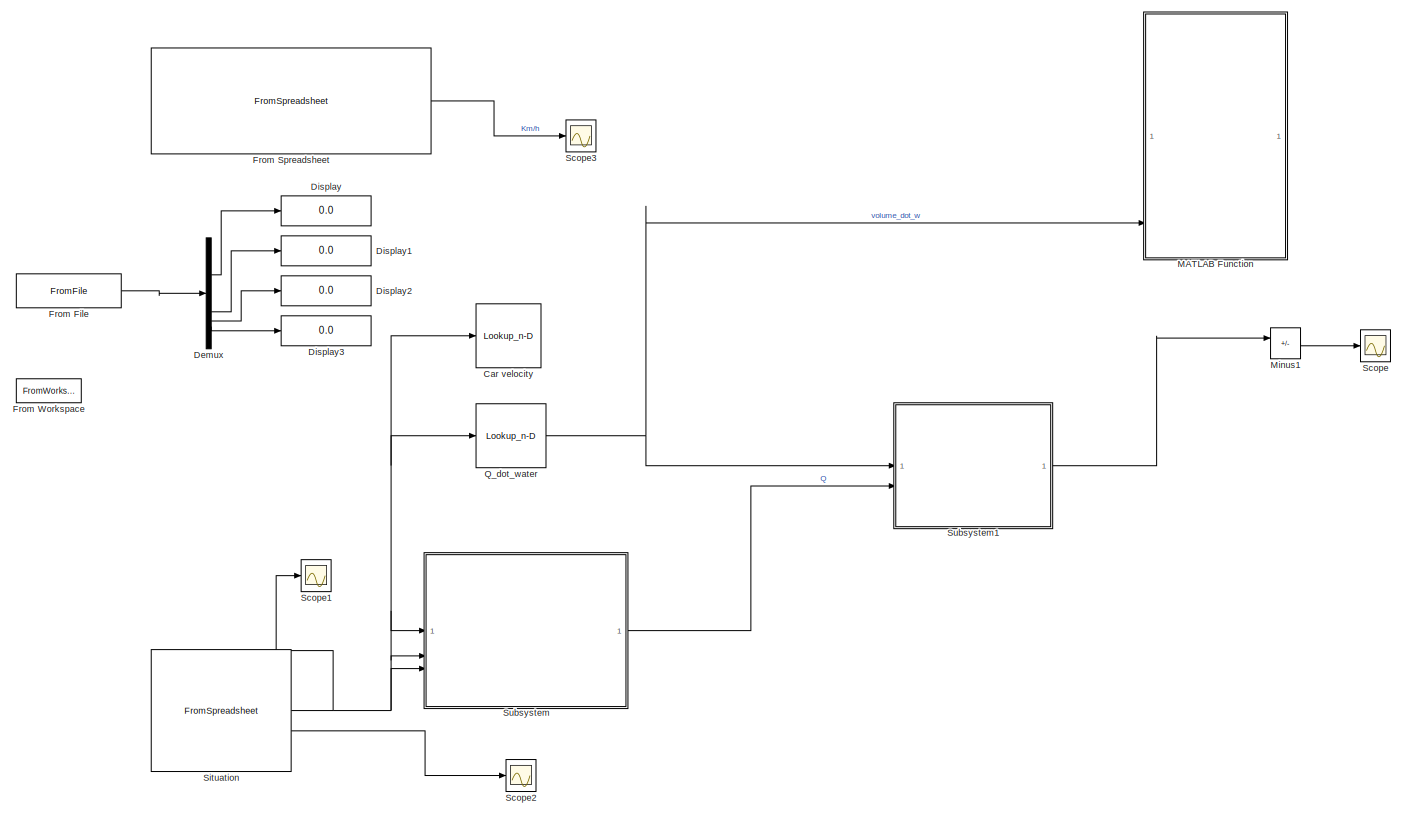
[diagram: root canvas - part 1/1, most of the canvas]
MODEL slx_274540c7875d
KIND model
CONFIG AbsTol = auto
CONFIG EnableMultiTasking = off
CONFIG FixedStep = auto
CONFIG MaxStep = auto
CONFIG MinStep = auto
CONFIG RelTol = 1e-3
CONFIG SampleTimeConstraint = Unconstrained
CONFIG SolverName = VariableStepAuto
CONFIG StartTime = 0.0
CONFIG StopTime = 1697
BLOCK [Lookup_n-D] Car velocity
  BreakpointsForDimension1 = [2500\n3000\n3500\n4000\n4500\n5000\n5500\n6000\n6500\n7000\n7500\n8000\n8500\n9000\n9500\n10000\n10500\n11000\n11500\n12000\n]
  Commented = on
  InputPortMap = u0
  InternalRulePriority = Speed
  NumberOfTableDimensions = 1
  RndMeth = Simplest
  Table = [14.74651903\n17.69582284\n20.64512664\n23.59443045\n26.54373425\n29.49303806\n32.44234187\n35.39164567\n38.34094948\n41.29025329\n44.23955709\n47.1888609\n50.1381647\n53.08746851\n56.03677232\n58.98607612\n61.93537993\n64.88468373\n67.83398754\n70.78329135\n]
BLOCK [Demux] Demux
BLOCK [Display] Display
  Decimation = 1
BLOCK [Display] Display1
  Decimation = 1
BLOCK [Display] Display2
  Decimation = 1
BLOCK [Display] Display3
  Decimation = 1
BLOCK [FromFile] From File
  FileName = Radi_parameter.mat
  SampleTime = 0
BLOCK [FromSpreadsheet] From Spreadsheet
  FileName = Endurance(1)_speed.csv
  SheetName = Endurance(1)_speed
BLOCK [FromWorkspace] From Workspace
  VariableName = R_l
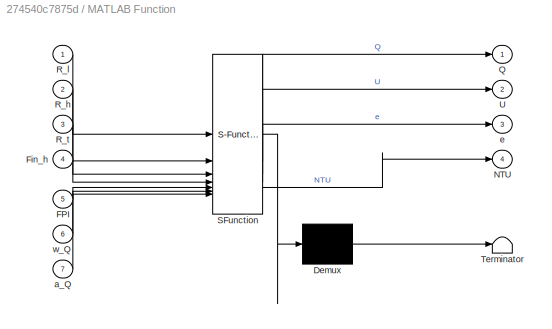
BLOCK [SubSystem] MATLAB Function
  Commented = on
  ErrorFcn = Stateflow.Translate.translate
  PermitHierarchicalResolution = ExplicitOnly
  SFBlockType = MATLAB Function
  TreatAsAtomicUnit = on
BLOCK [Demux] MATLAB Function/ Demux 
  Outputs = 1
BLOCK [S-Function] MATLAB Function/ SFunction 
  EnableBusSupport = on
  FunctionName = sf_sfun
  PortCounts = [7 5]
  SFcnIsStateOwnerBlock = off
  SFunctionDeploymentMode = off
  Tag = Stateflow S-Function 1
BLOCK [Terminator] MATLAB Function/ Terminator 
BLOCK [Inport] MATLAB Function/FPI
  Port = 5
BLOCK [Inport] MATLAB Function/Fin_h
  Port = 4
BLOCK [Outport] MATLAB Function/NTU
  Port = 4
BLOCK [Outport] MATLAB Function/Q
BLOCK [Inport] MATLAB Function/R_h
  Port = 2
BLOCK [Inport] MATLAB Function/R_l
BLOCK [Inport] MATLAB Function/R_t
  Port = 3
BLOCK [Outport] MATLAB Function/U
  Port = 2
BLOCK [Inport] MATLAB Function/a_Q
  Port = 7
BLOCK [Outport] MATLAB Function/e
  Port = 3
BLOCK [Inport] MATLAB Function/w_Q
  Port = 6
BLOCK [Sum] Minus1
  IconShape = rectangular
  Inputs = +-
BLOCK [Lookup_n-D] Q_dot_water
  BreakpointsForDimension1 = [2000\n2500\n3000\n3500\n4000\n4500\n5000\n5500\n6000\n6500\n7000\n7500\n8000\n8500\n9000\n9500\n10000\n10500\n11000\n11500\n12000\n]
  InputPortMap = u0
  InternalRulePriority = Speed
  NumberOfTableDimensions = 1
  RndMeth = Simplest
  Table = [0.000204\n0.000255\n0.000306\n0.000357\n0.000408\n0.000459\n0.00051\n0.000561\n0.000612\n0.000663\n0.000714\n0.000765\n0.000816\n0.000867\n0.000918\n0.000969\n0.001021\n0.001072\n0.001123\n0.001174\n0.001225\n]
BLOCK [Scope] Scope
  Floating = off
  NumInputPorts = 1
  ScopeSpecificationString = Simulink.scopes.TimeScopeBlockCfg('CurrentConfiguration', extmgr.ConfigurationSet(extmgr.Configuration('Core','General UI',true),extmgr.Configuration('Core','Source UI',true),extmgr.Configuration('Sources','WiredSimulink',true),extmgr.Configuration('Visuals','Time Domain',true,'SerializedDisplays',{struct('MinYLimReal','-5435.22266','MaxYLimReal','49347.00397','YLabelReal','','MinYLimMag','  0.000...<+1381ch>
BLOCK [Scope] Scope1
  Floating = off
  NumInputPorts = 1
  ScopeSpecificationString = Simulink.scopes.TimeScopeBlockCfg('CurrentConfiguration', extmgr.ConfigurationSet(extmgr.Configuration('Core','General UI',true),extmgr.Configuration('Core','Source UI',true),extmgr.Configuration('Sources','WiredSimulink',true,'DataLoggingVariableName','ScopeData1'),extmgr.Configuration('Visuals','Time Domain',true,'SerializedDisplays',{struct('MinYLimReal','-1190.18302','MaxYLimReal','10711.64719...<+1425ch>
BLOCK [Scope] Scope2
  Floating = off
  NumInputPorts = 1
  ScopeSpecificationString = Simulink.scopes.TimeScopeBlockCfg('CurrentConfiguration', extmgr.ConfigurationSet(extmgr.Configuration('Core','General UI',true),extmgr.Configuration('Core','Source UI',true),extmgr.Configuration('Sources','WiredSimulink',true,'DataLoggingVariableName','ScopeData2'),extmgr.Configuration('Visuals','Time Domain',true,'SerializedDisplays',{struct('MinYLimReal','30.87201','MaxYLimReal','82.15194','YLa...<+1406ch>
BLOCK [Scope] Scope3
  Floating = off
  NumInputPorts = 1
  ScopeSpecificationString = Simulink.scopes.TimeScopeBlockCfg('CurrentConfiguration', extmgr.ConfigurationSet(extmgr.Configuration('Core','General UI',true),extmgr.Configuration('Core','Source UI',true),extmgr.Configuration('Sources','WiredSimulink',true,'DataLoggingVariableName','ScopeData1'),extmgr.Configuration('Visuals','Time Domain',true,'SerializedDisplays',{struct('MinYLimReal','-6.82755','MaxYLimReal','61.44794','YLa...<+1396ch>
BLOCK [FromSpreadsheet] Situation
  FileName = Endurance(1).csv
  SheetName = Endurance(1)
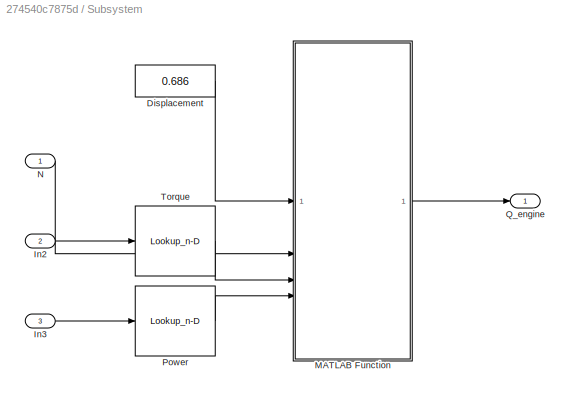
BLOCK [SubSystem] Subsystem
BLOCK [Constant] Subsystem/Displacement
  Value = 0.686
BLOCK [Inport] Subsystem/In2
  Port = 2
BLOCK [Inport] Subsystem/In3
  Port = 3
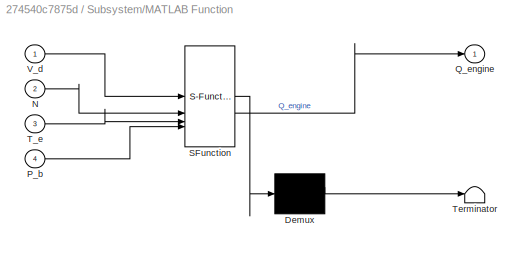
BLOCK [SubSystem] Subsystem/MATLAB Function
  ErrorFcn = Stateflow.Translate.translate
  PermitHierarchicalResolution = ExplicitOnly
  SFBlockType = MATLAB Function
  TreatAsAtomicUnit = on
BLOCK [Demux] Subsystem/MATLAB Function/ Demux 
  Outputs = 1
BLOCK [S-Function] Subsystem/MATLAB Function/ SFunction 
  EnableBusSupport = on
  FunctionName = sf_sfun
  PortCounts = [4 2]
  SFcnIsStateOwnerBlock = off
  SFunctionDeploymentMode = off
  Tag = Stateflow S-Function 2
BLOCK [Terminator] Subsystem/MATLAB Function/ Terminator 
BLOCK [Inport] Subsystem/MATLAB Function/N
  Port = 2
BLOCK [Inport] Subsystem/MATLAB Function/P_b
  Port = 4
BLOCK [Outport] Subsystem/MATLAB Function/Q_engine
BLOCK [Inport] Subsystem/MATLAB Function/T_e
  Port = 3
BLOCK [Inport] Subsystem/MATLAB Function/V_d
BLOCK [Inport] Subsystem/N
BLOCK [Lookup_n-D] Subsystem/Power
  BreakpointsForDimension1 = [2000\n2500\n3000\n3500\n4000\n4500\n5000\n5500\n6000\n6500\n7000\n7500\n8000\n8500\n9000\n9500\n10000\n10500]
  InputPortMap = u0
  InternalRulePriority = Speed
  NumberOfTableDimensions = 1
  RndMeth = Simplest
  Table = [8.21009535654529\n12.6810277191857\n17.1341120484423\n21.2391597267150\n25.7011680726635\n27.6287556781133\n31.2340584216397\n35.3391060999123\n39.0657754704486\n43.2307925408908\n46.4762789313999\n49.1213574788781\n49.3462426995140\n50.9739833441160\n52.1990723555796\n50.8668951438132\n46.1193182637240\n41.9785745186837]
BLOCK [Outport] Subsystem/Q_engine
BLOCK [Lookup_n-D] Subsystem/Torque
  BreakpointsForDimension1 = [2000\n2500\n3000\n3500\n4000\n4500\n5000\n5500\n6000\n6500\n7000\n7500\n8000\n8500\n9000\n9500\n10000\n10500]
  InputPortMap = u0
  InternalRulePriority = Speed
  NumberOfTableDimensions = 1
  RndMeth = Simplest
  Table = [39.2003177775000\n48.4379578798500\n54.5395725600000\n57.9482958450000\n61.3570191300000\n58.6300405020000\n59.6526574875000\n61.3570191300000\n62.1751127184000\n63.5113322461200\n63.4022531010000\n62.5432548331800\n58.9027383648000\n57.2665511880000\n55.3849359346800\n51.1308492750000\n44.0407048422000\n38.1777007920000]
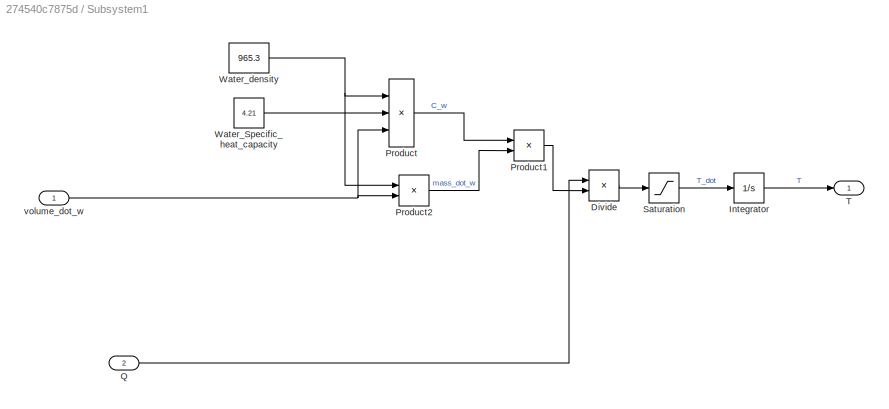
BLOCK [SubSystem] Subsystem1
BLOCK [Product] Subsystem1/Divide
  Inputs = */
BLOCK [Integrator] Subsystem1/Integrator
  InitialCondition = 43
BLOCK [Product] Subsystem1/Product
  Inputs = 3
BLOCK [Product] Subsystem1/Product1
BLOCK [Product] Subsystem1/Product2
BLOCK [Inport] Subsystem1/Q
  Port = 2
BLOCK [Saturate] Subsystem1/Saturation
  LowerLimit = 0
  UpperLimit = 1000
BLOCK [Outport] Subsystem1/T
BLOCK [Constant] Subsystem1/Water_Specific_heat_capacity
  Value = 4.21
BLOCK [Constant] Subsystem1/Water_density
  Value = 965.3
BLOCK [Inport] Subsystem1/volume_dot_w
LINE Demux:1 -> Display:1
LINE Demux:2 -> Display1:1
LINE Demux:3 -> Display2:1
LINE Demux:4 -> Display3:1
LINE From File:1 -> Demux:1
LINE From Spreadsheet:1 -> Scope3:1
LINE Minus1:1 -> Scope:1
NET Q_dot_water:1 -> MATLAB Function:6, Subsystem1:1
NET Situation:1 -> Car velocity:1, Q_dot_water:1, Scope1:1, Subsystem:1, Subsystem:2, Subsystem:3
LINE Situation:2 -> Scope2:1
LINE Subsystem/Displacement:1 -> Subsystem/MATLAB Function:1
LINE Subsystem/In2:1 -> Subsystem/Torque:1
LINE Subsystem/In3:1 -> Subsystem/Power:1
LINE Subsystem/MATLAB Function:1 -> Subsystem/Q_engine:1
LINE Subsystem/N:1 -> Subsystem/MATLAB Function:2
LINE Subsystem/Power:1 -> Subsystem/MATLAB Function:4
LINE Subsystem/Torque:1 -> Subsystem/MATLAB Function:3
LINE Subsystem1/Divide:1 -> Subsystem1/Saturation:1
LINE Subsystem1/Integrator:1 -> Subsystem1/T:1
LINE Subsystem1/Product1:1 -> Subsystem1/Divide:2
LINE Subsystem1/Product2:1 -> Subsystem1/Product1:2
LINE Subsystem1/Product:1 -> Subsystem1/Product1:1
LINE Subsystem1/Q:1 -> Subsystem1/Divide:1
LINE Subsystem1/Saturation:1 -> Subsystem1/Integrator:1
LINE Subsystem1/Water_Specific_heat_capacity:1 -> Subsystem1/Product:2
NET Subsystem1/Water_density:1 -> Subsystem1/Product2:1, Subsystem1/Product:1
NET Subsystem1/volume_dot_w:1 -> Subsystem1/Product2:2, Subsystem1/Product:3
LINE Subsystem1:1 -> Minus1:1
LINE Subsystem:1 -> Subsystem1:2
note: NET lines group one-source signal fan-out (src -> all destinations, sorted); 1:1 wires keep LINE
CHART MATLAB Function states=1 transitions=1
  STATE_LABEL 'eML_blk_kernel()'
  STATE_LABEL 'SCRIPT:\nfunction [Q,U,e,NTU] = fcn(R_l,R_h,R_t,Fin_h,FPI,w_Q,a_Q)\n\n[Q,U,e,NTU] = RadiCalculator(R_l,R_h,R_t,Fin_h,FPI,w_Q,a_Q);\n\nend\n'
CHART Subsystem/MATLAB Function states=1 transitions=1
  STATE_LABEL 'eML_blk_kernel()'
  STATE_LABEL 'SCRIPT:\nfunction Q_engine = Lahivc(V_d, N, T_e, P_b)\n\n% Lahivc Function from Ford\n\nQ_engine = (8.66*V_d*N+108.93*T_e+1119.74*P_b-1010*V_d+2890)/3412.2;\n'
CHART  states=0 transitions=0
CHART  states=0 transitions=0
